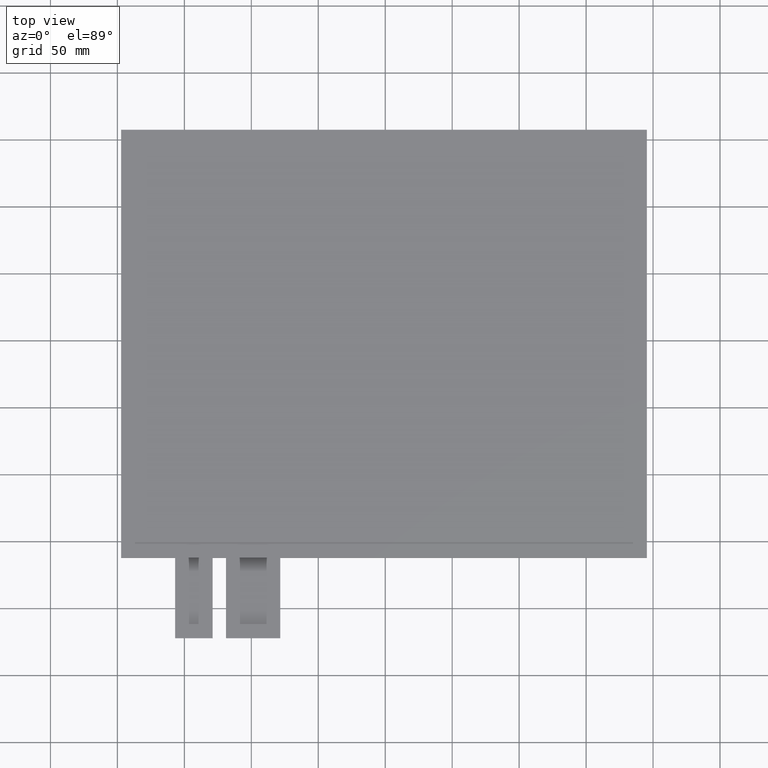
[diagram: clean part render]
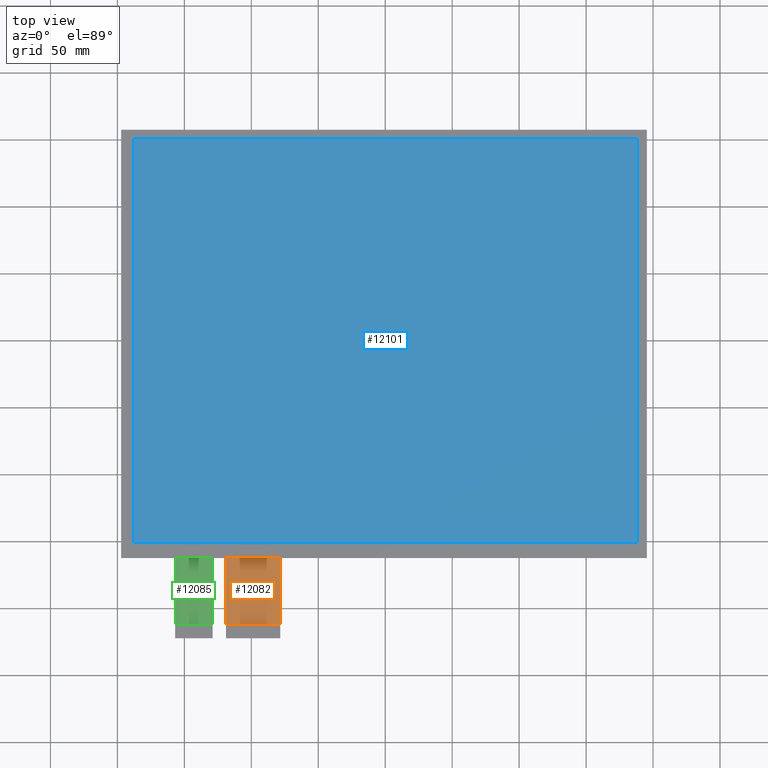
[diagram: same view with three faces highlighted in distinct colors, each labeled with its STEP entity id]
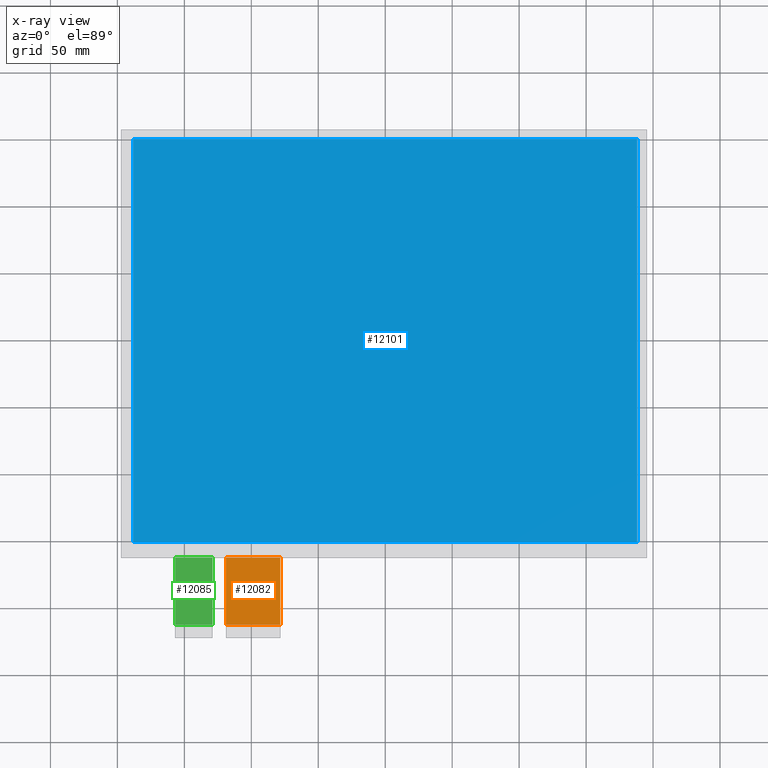
[diagram: x-ray of the same camera — body ghosted, the three highlighted faces saturated]
A machine part, top view with three faces highlighted in distinct colors.
The next image is the same camera in x-ray (body ghosted, the three faces saturated) — at least one of them is partly hidden behind the body in this view.
Their STEP definitions:

[orange] entity #12082 — the highlighted planar face has unit normal (0, 0, 1).
#624=PLANE('',#12688);
#1202=FACE_OUTER_BOUND('',#1780,.T.);
#1780=EDGE_LOOP('',(#11417,#11418,#11419,#11420));
#3456=LINE('',#18914,#5164);
#3459=LINE('',#18920,#5167);
#3469=LINE('',#18939,#5177);
#3470=LINE('',#18941,#5178);
#5164=VECTOR('',#15482,10.);
#5167=VECTOR('',#15487,10.);
#5177=VECTOR('',#15505,10.);
#5178=VECTOR('',#15508,10.);
#6338=VERTEX_POINT('',#18911);
#6339=VERTEX_POINT('',#18913);
#6341=VERTEX_POINT('',#18919);
#6346=VERTEX_POINT('',#18937);
#8032=EDGE_CURVE('',#6339,#6338,#3456,.T.);
#8035=EDGE_CURVE('',#6338,#6341,#3459,.T.);
#8045=EDGE_CURVE('',#6341,#6346,#3469,.T.);
#8046=EDGE_CURVE('',#6339,#6346,#3470,.T.);
#11417=ORIENTED_EDGE('',*,*,#8035,.T.);
#11418=ORIENTED_EDGE('',*,*,#8045,.T.);
#11419=ORIENTED_EDGE('',*,*,#8046,.F.);
#11420=ORIENTED_EDGE('',*,*,#8032,.T.);
#12082=ADVANCED_FACE('',(#1202),#624,.T.);
#12688=AXIS2_PLACEMENT_3D('',#18940,#15506,#15507);
#15482=DIRECTION('',(2.96059473233375E-16,-1.,0.));
#15487=DIRECTION('',(1.,0.,0.));
#15505=DIRECTION('',(-1.48029736616688E-16,1.,0.));
#15506=DIRECTION('center_axis',(0.,0.,1.));
#15507=DIRECTION('ref_axis',(1.,0.,0.));
#15508=DIRECTION('',(1.,0.,0.));
#18911=CARTESIAN_POINT('',(-118.86,-212.25,-1.1));
#18913=CARTESIAN_POINT('',(-118.86,-162.25,-1.1));
#18914=CARTESIAN_POINT('',(-118.86,-162.25,-1.1));
#18919=CARTESIAN_POINT('',(-78.3599999999999,-212.25,-1.1));
#18920=CARTESIAN_POINT('',(-88.4849999999999,-212.25,-1.1));
#18937=CARTESIAN_POINT('',(-78.3599999999999,-162.25,-1.1));
#18939=CARTESIAN_POINT('',(-78.3599999999999,-222.25,-1.1));
#18940=CARTESIAN_POINT('Origin',(-98.6099999999999,-192.25,-1.1));
#18941=CARTESIAN_POINT('',(48.365,-162.25,-1.1));

[blue] entity #12101 — the highlighted planar face has unit normal (0, 0, 1).
#643=PLANE('',#12707);
#1221=FACE_OUTER_BOUND('',#1803,.T.);
#1803=EDGE_LOOP('',(#11513,#11514,#11515,#11516));
#3477=LINE('',#18957,#5185);
#3481=LINE('',#18965,#5189);
#3484=LINE('',#18971,#5192);
#3487=LINE('',#18976,#5195);
#5185=VECTOR('',#15525,10.);
#5189=VECTOR('',#15531,10.);
#5192=VECTOR('',#15536,10.);
#5195=VECTOR('',#15541,10.);
#6349=VERTEX_POINT('',#18955);
#6350=VERTEX_POINT('',#18956);
#6353=VERTEX_POINT('',#18964);
#6355=VERTEX_POINT('',#18970);
#8053=EDGE_CURVE('',#6349,#6350,#3477,.T.);
#8057=EDGE_CURVE('',#6353,#6349,#3481,.T.);
#8060=EDGE_CURVE('',#6355,#6353,#3484,.T.);
#8063=EDGE_CURVE('',#6350,#6355,#3487,.T.);
#11513=ORIENTED_EDGE('',*,*,#8053,.T.);
#11514=ORIENTED_EDGE('',*,*,#8063,.T.);
#11515=ORIENTED_EDGE('',*,*,#8060,.T.);
#11516=ORIENTED_EDGE('',*,*,#8057,.T.);
#12101=ADVANCED_FACE('',(#1221),#643,.T.);
#12707=AXIS2_PLACEMENT_3D('',#19028,#15587,#15588);
#15525=DIRECTION('',(1.,0.,0.));
#15531=DIRECTION('',(0.,-1.,0.));
#15536=DIRECTION('',(-1.,0.,0.));
#15541=DIRECTION('',(0.,1.,0.));
#15587=DIRECTION('center_axis',(0.,0.,1.));
#15588=DIRECTION('ref_axis',(1.,0.,0.));
#18955=CARTESIAN_POINT('',(-188.2,-150.55,0.));
#18956=CARTESIAN_POINT('',(188.2,-150.55,0.));
#18957=CARTESIAN_POINT('',(-94.555,-150.55,0.));
#18964=CARTESIAN_POINT('',(-188.2,150.55,0.));
#18965=CARTESIAN_POINT('',(-188.2,74.1,0.));
#18970=CARTESIAN_POINT('',(188.2,150.55,0.));
#18971=CARTESIAN_POINT('',(93.645,150.55,0.));
#18976=CARTESIAN_POINT('',(188.2,-76.45,0.));
#19028=CARTESIAN_POINT('Origin',(-0.910000000000046,-2.35000000000003,0.));

[green] entity #12085 — the highlighted planar face has unit normal (0, 0, 1).
#627=PLANE('',#12691);
#1205=FACE_OUTER_BOUND('',#1783,.T.);
#1783=EDGE_LOOP('',(#11433,#11434,#11435,#11436));
#3448=LINE('',#18898,#5156);
#3463=LINE('',#18928,#5171);
#3474=LINE('',#18949,#5182);
#3475=LINE('',#18951,#5183);
#5156=VECTOR('',#15470,10.);
#5171=VECTOR('',#15495,10.);
#5182=VECTOR('',#15516,10.);
#5183=VECTOR('',#15519,10.);
#6332=VERTEX_POINT('',#18895);
#6333=VERTEX_POINT('',#18897);
#6343=VERTEX_POINT('',#18927);
#6348=VERTEX_POINT('',#18947);
#8024=EDGE_CURVE('',#6333,#6332,#3448,.T.);
#8039=EDGE_CURVE('',#6332,#6343,#3463,.T.);
#8050=EDGE_CURVE('',#6343,#6348,#3474,.T.);
#8051=EDGE_CURVE('',#6333,#6348,#3475,.T.);
#11433=ORIENTED_EDGE('',*,*,#8039,.T.);
#11434=ORIENTED_EDGE('',*,*,#8050,.T.);
#11435=ORIENTED_EDGE('',*,*,#8051,.F.);
#11436=ORIENTED_EDGE('',*,*,#8024,.T.);
#12085=ADVANCED_FACE('',(#1205),#627,.T.);
#12691=AXIS2_PLACEMENT_3D('',#18950,#15517,#15518);
#15470=DIRECTION('',(0.,-1.,0.));
#15495=DIRECTION('',(1.,0.,0.));
#15516=DIRECTION('',(2.96059473233375E-16,1.,0.));
#15517=DIRECTION('center_axis',(0.,0.,1.));
#15518=DIRECTION('ref_axis',(1.,0.,0.));
#15519=DIRECTION('',(1.,0.,0.));
#18895=CARTESIAN_POINT('',(-156.86,-212.25,-1.1));
#18897=CARTESIAN_POINT('',(-156.86,-162.25,-1.1));
#18898=CARTESIAN_POINT('',(-156.86,-162.25,-1.1));
#18927=CARTESIAN_POINT('',(-128.86,-212.25,-1.1));
#18928=CARTESIAN_POINT('',(-135.86,-212.25,-1.1));
#18947=CARTESIAN_POINT('',(-128.86,-162.25,-1.1));
#18949=CARTESIAN_POINT('',(-128.86,-222.25,-1.1));
#18950=CARTESIAN_POINT('Origin',(-142.86,-192.25,-1.1));
#18951=CARTESIAN_POINT('',(26.24,-162.25,-1.1));